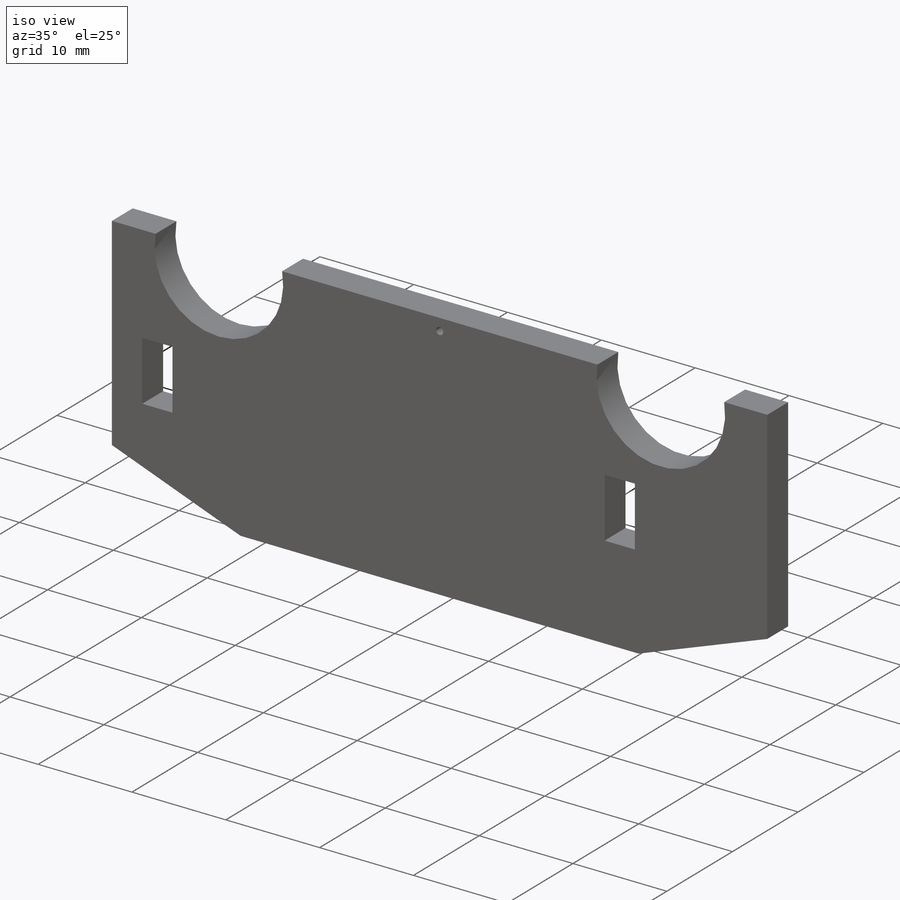
[diagram: iso view]
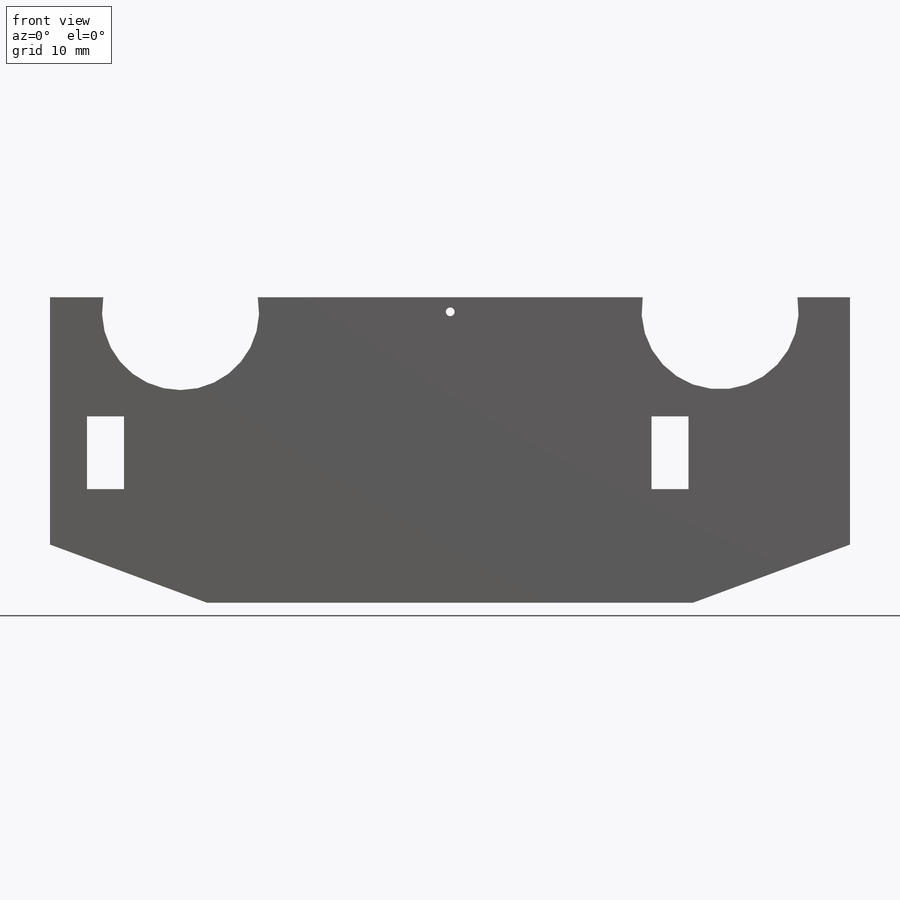
[diagram: front view]
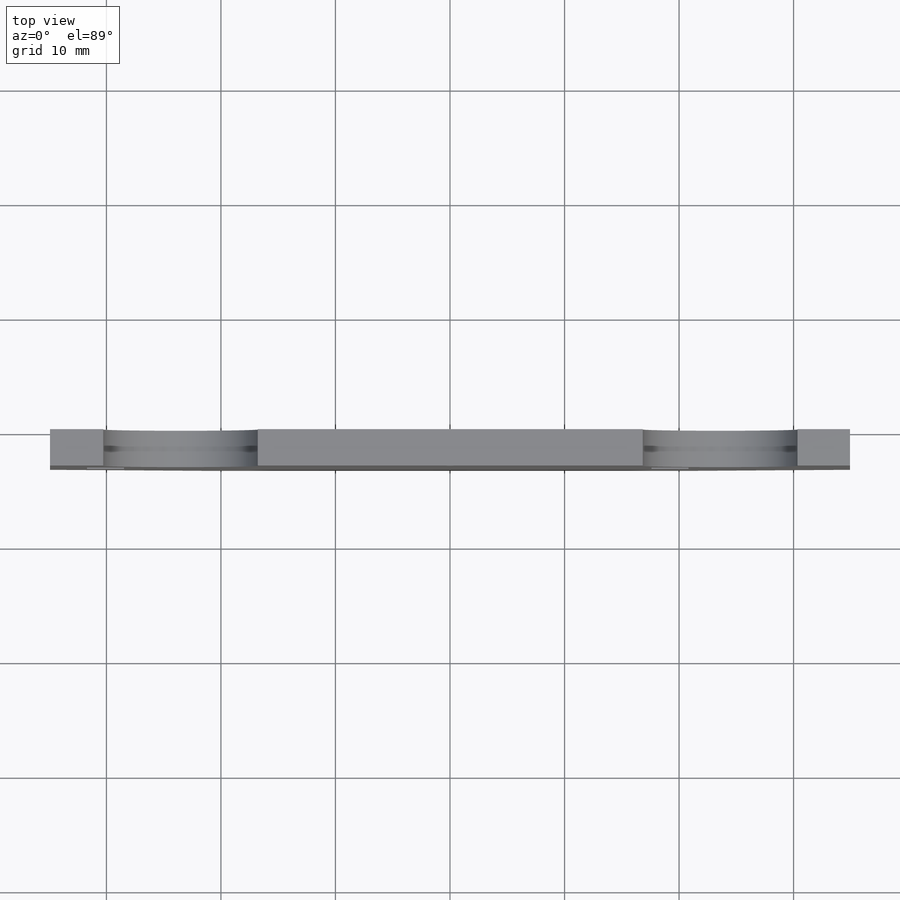
[diagram: top view]
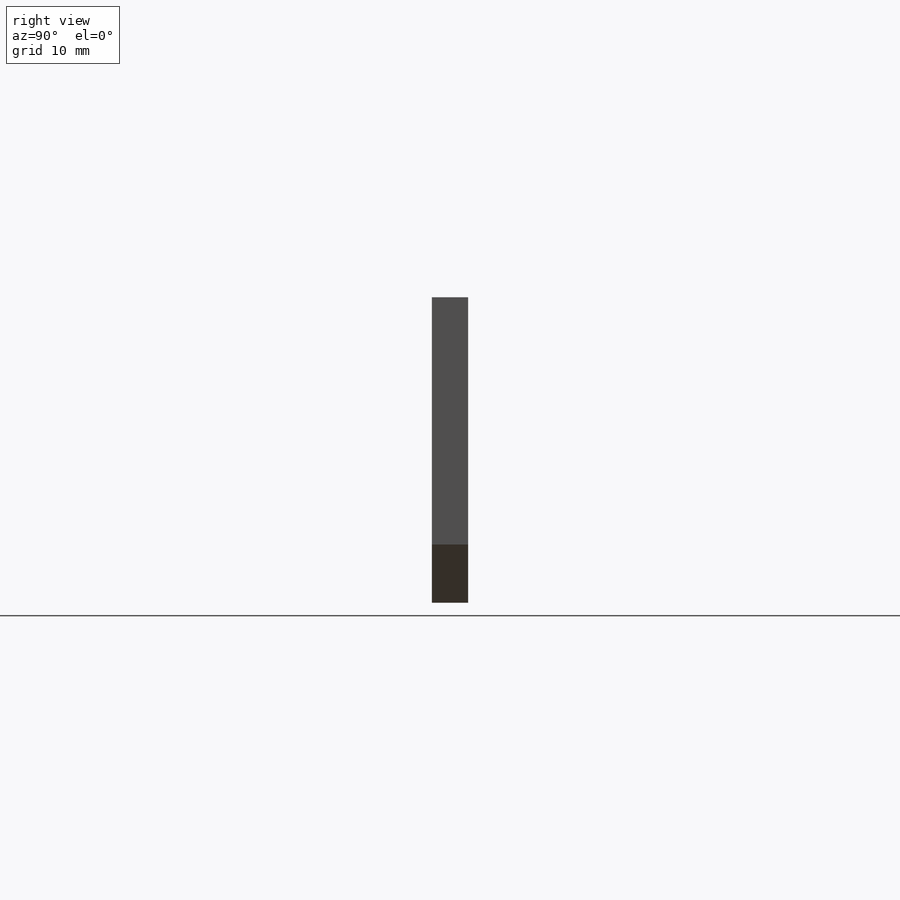
[diagram: right view]
SOLIDWORKS PART (.sldprt)
format: sldprt  version: not decoded by parser v0  size: 299,520 bytes
history: native  units: mm
features: sketch x5, cut_extrude x3, extrude x2, mirror x2, material x1 (+16 scaffold rows collapsed)
feature tree (29):
  scaffold x16  (default folders/planes/origin — collapsed)
  material  "Material <not specified>"
  sketch  "Sketch1"  dims[D1=69.85mm D2=19.05mm]
  extrude  "main body"  Depth=3.175mm
  sketch  "Sketch9"  dims[D1=7.62mm D2=2.54mm]
  extrude  "chin feature"  Depth=3.175mm
  mirror  "mirror of chin feature"
  sketch  "Sketch10"  dims[D1=3.2258mm D2=6.35mm D3=3.2258mm D4=6.35mm]
  cut_extrude  "cut for tabs"  [1 undecoded]
  sketch  "Sketch11"
  mirror  "Block1-1"
  cut_extrude  "cut for lip motor aperture"  [1 undecoded]
  sketch  "Sketch12"  dims[D1=0.762mm D2=1.27mm]
  cut_extrude  "Cut-Extrude1"  [1 undecoded]
decode coverage: 6 of 12 modeling features carry decoded parameters
note: 3 parameter values undecoded
summary: no parameter record found for 3 features
note: suppression state not decoded; provenance and decode notes live in map.json
